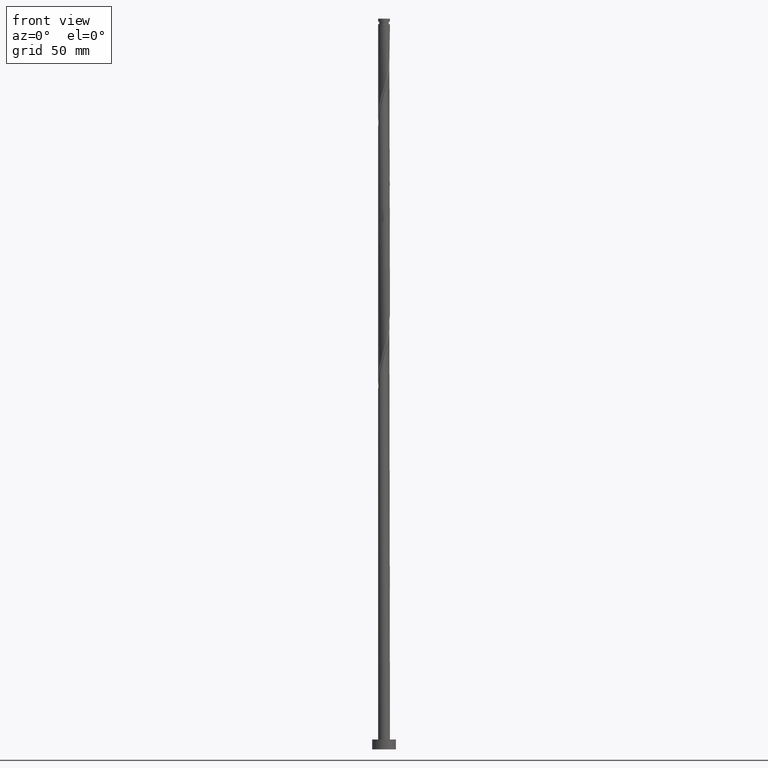
[diagram: clean part render]
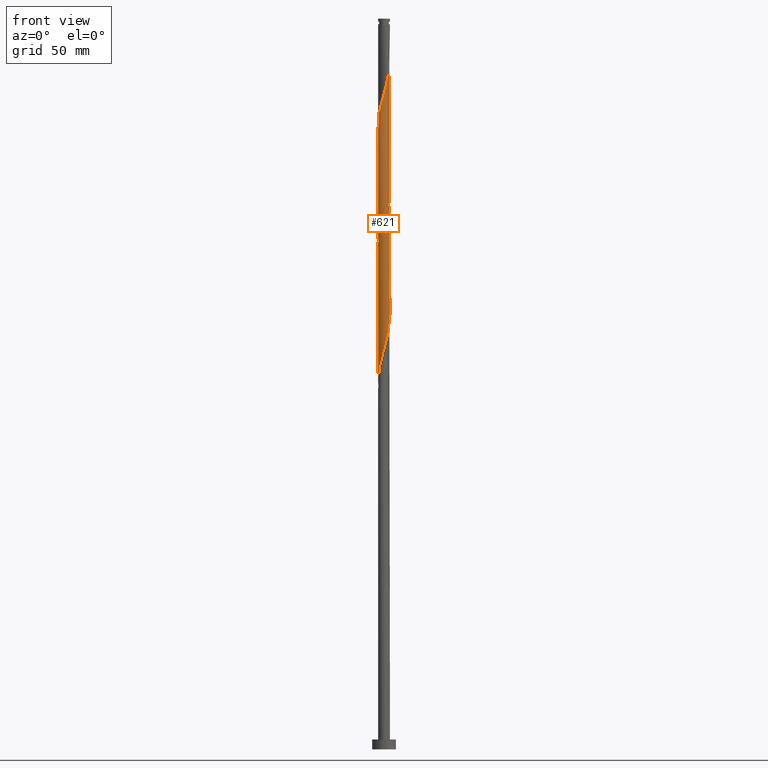
[diagram: same view with one face highlighted and labeled with its STEP entity id]
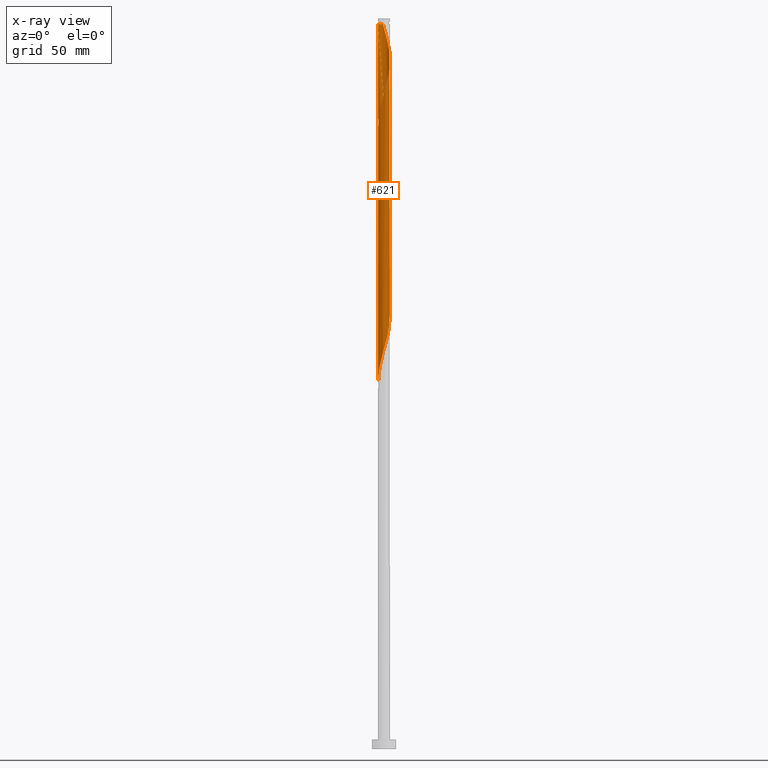
[diagram: x-ray of the same camera — body ghosted, the highlighted face saturated]
A machine part, front view. The second image highlights one B-rep face of the part: STEP entity #621.
The next image is the same camera in x-ray: the body ghosted, the highlighted face saturated — about 0% of this face is hidden behind the body in this view.
In plain terms, the highlighted cylindrical surface (bore or boss wall) has radius 3 mm, axis along (-0, -0, -1).
Its self-contained STEP definition (entity closure, byte-faithful):
#6 = CARTESIAN_POINT ( 'NONE',  ( 0.000000000000000000, 0.000000000000000000, 370.6999999999999886 ) ) ;
#8 = CARTESIAN_POINT ( 'NONE',  ( 3.000000000000000888, 2.406694882727060570E-15, 286.7088092630564233 ) ) ;
#9 = CARTESIAN_POINT ( 'NONE',  ( 0.9582386936374895914, -2.860279830445433991, 273.4722549084236789 ) ) ;
#18 = CARTESIAN_POINT ( 'NONE',  ( 1.741185482790980510, 2.443004935426440039, 296.8055882417570501 ) ) ;
#19 = CARTESIAN_POINT ( 'NONE',  ( 3.000000000000001776, -0.1435319978602364321, 286.2002607374924423 ) ) ;
#30 = CARTESIAN_POINT ( 'NONE',  ( 2.956194341916736690, -0.6002808636434370237, 284.5833660195348216 ) ) ;
#56 = EDGE_CURVE ( 'NONE', #1438, #1492, #1542, .T. ) ;
#79 = CARTESIAN_POINT ( 'NONE',  ( -0.02731362638454028907, -2.999875658392153088, 332.3611437973126499 ) ) ;
#99 = CARTESIAN_POINT ( 'NONE',  ( -0.6504259784947266088, 2.928642355512051765, 239.0278104639792787 ) ) ;
#102 = CARTESIAN_POINT ( 'NONE',  ( -2.766788993523056295, 1.201790650553046902, 249.0278104639792502 ) ) ;
#112 = CARTESIAN_POINT ( 'NONE',  ( 2.211065689225171660, 2.027606598413809635, 227.9166993528682212 ) ) ;
#114 = CARTESIAN_POINT ( 'NONE',  ( -1.785379858637177408, 2.410895841875523971, 243.4722549084237357 ) ) ;
#120 = CARTESIAN_POINT ( 'NONE',  ( 0.000000000000000000, 0.000000000000000000, 367.9166993528681928 ) ) ;
#122 = CARTESIAN_POINT ( 'NONE',  ( 1.741185482790980510, 2.443004935426440039, 230.1389215750903645 ) ) ;
#128 = CARTESIAN_POINT ( 'NONE',  ( -0.5969924622640903067, 2.940000000000866809, 367.9166993528684202 ) ) ;
#133 = CARTESIAN_POINT ( 'NONE',  ( 2.861491667719896714, -0.9010357570982435726, 216.8055882417571070 ) ) ;
#147 = CARTESIAN_POINT ( 'NONE',  ( -2.424175730171093335, -1.795214230025622415, 260.1389215750903645 ) ) ;
#179 = CARTESIAN_POINT ( 'NONE',  ( -2.861491667719896714, 0.9010357570982420183, 316.8055882417571070 ) ) ;
#180 = CARTESIAN_POINT ( 'NONE',  ( 1.785379858637176964, -2.410895841875524415, 210.1389215750904214 ) ) ;
#207 = CARTESIAN_POINT ( 'NONE',  ( -2.611625341554443036, -1.476283534877588677, 321.2500326862015072 ) ) ;
#211 =( BOUNDED_CURVE ( )  B_SPLINE_CURVE ( 2, ( #1046, #462, #889, #1349, #179, #598, #1620, #618, #735, #312, #1176, #752, #897, #1342, #1770, #1331, #1777, #1486, #908, #1219, #1498, #1475, #18, #1322, #1071, #1762, #303, #339, #760, #1197, #1034, #1505, #8 ),
 .UNSPECIFIED., .F., .T. ) 
 B_SPLINE_CURVE_WITH_KNOTS ( ( 3, 2, 2, 2, 2, 2, 2, 2, 2, 2, 2, 2, 2, 2, 2, 2, 3 ),
 ( 0.4295286012773113504, 0.4333333333333333481, 0.4416666666666666519, 0.4500000000000000111, 0.4583333333333333148, 0.4666666666666666741, 0.4749999999999999778, 0.4833333333333333370, 0.4916666666666666408, 0.5000000000000000000, 0.5083333333333333037, 0.5166666666666667185, 0.5250000000000000222, 0.5333333333333333259, 0.5416666666666666297, 0.5500000000000000444, 0.5545286012773110729 ),
 .UNSPECIFIED. ) 
 CURVE ( )  GEOMETRIC_REPRESENTATION_ITEM ( )  RATIONAL_B_SPLINE_CURVE ( ( 0.9066196499552411359, 0.9068171577856538601, 0.9090909090909528034, 0.9041108139712010772, 0.9090909090909528034, 0.9041108139712010772, 0.9090909090909528034, 0.9041108139712010772, 0.9090909090909528034, 0.9041108139712010772, 0.9090909090909528034, 0.9041108139712010772, 0.9090909090909528034, 0.9041108139712010772, 0.9090909090909528034, 0.9041108139712010772, 0.9090909090909528034, 0.9041108139712010772, 0.9090909090909528034, 0.9041108139712010772, 0.9090909090909528034, 0.9041108139712010772, 0.9090909090909528034, 0.9041108139712010772, 0.9090909090909528034, 0.9041108139712010772, 0.9090909090909528034, 0.9041108139712010772, 0.9090909090909528034, 0.9041108139712010772, 0.9090909090909528034, 0.9063845652765001315, 0.9066196499552410248 ) ) 
 REPRESENTATION_ITEM ( '' )  );
#233 = CARTESIAN_POINT ( 'NONE',  ( -1.195207115623887262, -2.751632233922627346, 199.0278104639792787 ) ) ;
#244 = CARTESIAN_POINT ( 'NONE',  ( 0.02731362638453780495, -2.999875658392149091, 203.4722549084237073 ) ) ;
#247 = CARTESIAN_POINT ( 'NONE',  ( 1.245111594254573628, 2.729413328510883918, 361.2500326862015072 ) ) ;
#258 = CARTESIAN_POINT ( 'NONE',  ( 2.844610918258240417, -0.9529893618115782283, 345.6944771306459643 ) ) ;
#260 = CARTESIAN_POINT ( 'NONE',  ( -3.000000000000000888, -3.767000686007573134E-15, 186.7088092630563949 ) ) ;
#268 = CARTESIAN_POINT ( 'NONE',  ( 1.195207115623886374, -2.751632233922632231, 336.8055882417570501 ) ) ;
#275 = EDGE_CURVE ( 'NONE', #349, #745, #384, .T. ) ;
#276 = CARTESIAN_POINT ( 'NONE',  ( -0.5969924622640904177, 2.940000000000866365, 367.9166993528684202 ) ) ;
#279 = CARTESIAN_POINT ( 'NONE',  ( -1.741185482790978734, -2.443004935426440927, 263.4722549084237357 ) ) ;
#287 = CARTESIAN_POINT ( 'NONE',  ( -3.000000000000004885, -1.076285910287870657E-15, 315.7912561093466479 ) ) ;
#288 = CARTESIAN_POINT ( 'NONE',  ( 0.3426132633519626824, -2.997004880578669983, 271.2500326862013935 ) ) ;
#293 = CARTESIAN_POINT ( 'NONE',  ( 2.247618455994261133, -1.987010638188425382, 212.3611437973126215 ) ) ;
#303 = CARTESIAN_POINT ( 'NONE',  ( 2.584311715169900658, 1.523592123514560637, 292.3611437973125362 ) ) ;
#312 = CARTESIAN_POINT ( 'NONE',  ( -2.038775222402704035, 2.223244857174722089, 311.2500326862015640 ) ) ;
#313 = CARTESIAN_POINT ( 'NONE',  ( 3.000000000000000888, 2.406694882727060570E-15, 286.7088092630564233 ) ) ;
#323 = CARTESIAN_POINT ( 'NONE',  ( 1.785379858637176964, -2.410895841875524415, 276.8055882417570501 ) ) ;
#339 = CARTESIAN_POINT ( 'NONE',  ( 2.744447700168705762, 1.251970017003499969, 291.2500326862015072 ) ) ;
#340 = EDGE_CURVE ( 'NONE', #745, #1153, #1651, .T. ) ;
#349 = VERTEX_POINT ( 'NONE', #634 ) ;
#376 = CARTESIAN_POINT ( 'NONE',  ( -2.956194341916736690, 0.6002808636434365797, 251.2500326862014504 ) ) ;
#384 = LINE ( 'NONE', #1148, #1372 ) ;
#389 = CARTESIAN_POINT ( 'NONE',  ( 2.980586974261067557, -0.3407363920471049856, 347.9166993528681928 ) ) ;
#397 = CARTESIAN_POINT ( 'NONE',  ( 1.741185482790979622, -2.443004935426445812, 339.0278104639792218 ) ) ;
#403 = CARTESIAN_POINT ( 'NONE',  ( 0.3426132633519626824, -2.997004880578669983, 204.5833660195348216 ) ) ;
#423 = CARTESIAN_POINT ( 'NONE',  ( -3.000000000000000444, 0.000000000000000000, 370.6999999999999886 ) ) ;
#424 = CARTESIAN_POINT ( 'NONE',  ( -1.484415317302709481, -2.626010904050883887, 264.5833660195348216 ) ) ;
#443 = CARTESIAN_POINT ( 'NONE',  ( -2.980586974261064004, -0.3407363920471033203, 254.5833660195348500 ) ) ;
#444 = CARTESIAN_POINT ( 'NONE',  ( -2.424175730171093335, -1.795214230025622415, 193.4722549084237357 ) ) ;
#462 = CARTESIAN_POINT ( 'NONE',  ( -3.000000000000000888, 0.1435319978602463964, 319.5335940708255862 ) ) ;
#463 = CARTESIAN_POINT ( 'NONE',  ( 2.611625341554438595, -1.476283534877587122, 281.2500326862015072 ) ) ;
#467 = DIRECTION ( 'NONE',  ( -0.000000000000000000, -0.000000000000000000, -1.000000000000000000 ) ) ;
#471 = DIRECTION ( 'NONE',  ( -0.000000000000000000, -0.000000000000000000, -1.000000000000000000 ) ) ;
#508 = CARTESIAN_POINT ( 'NONE',  ( -0.3426132633519643478, -2.997004880578673980, 331.2500326862015072 ) ) ;
#524 = CARTESIAN_POINT ( 'NONE',  ( 1.484415317302710813, -2.626010904050889216, 337.9166993528681928 ) ) ;
#536 = CARTESIAN_POINT ( 'NONE',  ( 0.02731362638454072275, 2.999875658392153088, 365.6944771306459074 ) ) ;
#550 = CARTESIAN_POINT ( 'NONE',  ( 2.944774136347767968, 0.6540087066196476062, 222.3611437973126215 ) ) ;
#557 = ORIENTED_EDGE ( 'NONE', *, *, #819, .T. ) ;
#562 = CARTESIAN_POINT ( 'NONE',  ( -0.5969924622639748435, -2.939999999999999059, 201.2500326862015072 ) ) ;
#570 = CARTESIAN_POINT ( 'NONE',  ( 2.247618455994261133, -1.987010638188425382, 279.0278104639792787 ) ) ;
#574 = CARTESIAN_POINT ( 'NONE',  ( 0.5969924622639753986, 2.939999999999999059, 234.5833660195348500 ) ) ;
#575 = CARTESIAN_POINT ( 'NONE',  ( -1.245111594254570742, 2.729413328510879921, 241.2500326862014219 ) ) ;
#579 = DIRECTION ( 'NONE',  ( -1.000000000000000000, 0.000000000000000000, 0.000000000000000000 ) ) ;
#580 = CARTESIAN_POINT ( 'NONE',  ( 1.245111594254570520, -2.729413328510879921, 274.5833660195348216 ) ) ;
#598 = CARTESIAN_POINT ( 'NONE',  ( -2.766788993523056295, 1.201790650553046902, 315.6944771306459074 ) ) ;
#599 = CARTESIAN_POINT ( 'NONE',  ( 2.038775222402703591, -2.223244857174722977, 277.9166993528682497 ) ) ;
#604 = FACE_OUTER_BOUND ( 'NONE', #753, .T. ) ;
#608 = CARTESIAN_POINT ( 'NONE',  ( 2.766788993523056295, -1.201790650553047790, 282.3611437973127067 ) ) ;
#612 = CARTESIAN_POINT ( 'NONE',  ( -3.000000000000000444, -0.1709212123392990779, 187.3144005724409453 ) ) ;
#618 = CARTESIAN_POINT ( 'NONE',  ( -2.456461689585820007, 1.750776419202127343, 313.4722549084235652 ) ) ;
#621 = ADVANCED_FACE ( 'NONE', ( #604 ), #1208, .T. ) ;
#630 = CARTESIAN_POINT ( 'NONE',  ( 1.531984494871650115, -2.598546826576326740, 209.0278104639792218 ) ) ;
#634 = CARTESIAN_POINT ( 'NONE',  ( 3.000000000000000444, 3.673940397442059868E-16, 367.9166993528684202 ) ) ;
#646 = ORIENTED_EDGE ( 'NONE', *, *, #56, .F. ) ;
#650 = CARTESIAN_POINT ( 'NONE',  ( -1.531984494871654556, -2.598546826576329849, 326.8055882417571070 ) ) ;
#662 = CARTESIAN_POINT ( 'NONE',  ( -0.6504259784947286072, -2.928642355512055762, 330.1389215750903645 ) ) ;
#669 = CARTESIAN_POINT ( 'NONE',  ( 0.2879860105828849770, -3.002746436205633085, 333.4722549084237926 ) ) ;
#683 = CARTESIAN_POINT ( 'NONE',  ( -1.484415317302709481, -2.626010904050883887, 197.9166993528682212 ) ) ;
#696 = CARTESIAN_POINT ( 'NONE',  ( 0.9582386936374895914, -2.860279830445433991, 206.8055882417570217 ) ) ;
#697 = CARTESIAN_POINT ( 'NONE',  ( 1.531984494871656111, 2.598546826576328961, 360.1389215750905350 ) ) ;
#708 = CARTESIAN_POINT ( 'NONE',  ( 2.424175730171094667, 1.795214230025619750, 226.8055882417570501 ) ) ;
#710 = ORIENTED_EDGE ( 'NONE', *, *, #340, .F. ) ;
#715 = DIRECTION ( 'NONE',  ( -0.000000000000000000, -0.000000000000000000, -1.000000000000000000 ) ) ;
#716 = CARTESIAN_POINT ( 'NONE',  ( -0.2879860105828869199, -3.002746436205628200, 269.0278104639792218 ) ) ;
#735 = CARTESIAN_POINT ( 'NONE',  ( -2.247618455994261133, 1.987010638188424938, 312.3611437973125362 ) ) ;
#736 = CARTESIAN_POINT ( 'NONE',  ( -2.744447700168706206, -1.251970017003500413, 257.9166993528681360 ) ) ;
#745 = VERTEX_POINT ( 'NONE', #902 ) ;
#752 = CARTESIAN_POINT ( 'NONE',  ( -1.531984494871651448, 2.598546826576326296, 309.0278104639792787 ) ) ;
#753 = EDGE_LOOP ( 'NONE', ( #1048, #1727, #646, #557, #710, #1024, #1228, #789 ) ) ;
#760 = CARTESIAN_POINT ( 'NONE',  ( 2.844610918258237753, 0.9529893618115730103, 290.1389215750904782 ) ) ;
#767 = CARTESIAN_POINT ( 'NONE',  ( -2.744447700168706206, -1.251970017003500413, 191.2500326862014504 ) ) ;
#782 = CARTESIAN_POINT ( 'NONE',  ( -3.000000000000006217, -0.1435319978602337954, 316.2998046349106858 ) ) ;
#789 = ORIENTED_EDGE ( 'NONE', *, *, #1578, .F. ) ;
#801 = CARTESIAN_POINT ( 'NONE',  ( -2.766788993523062068, -1.201790650553047346, 320.1389215750903645 ) ) ;
#816 = CARTESIAN_POINT ( 'NONE',  ( -2.038775222402708032, -2.223244857174724753, 324.5833660195348216 ) ) ;
#819 = EDGE_CURVE ( 'NONE', #1438, #1153, #1066, .T. ) ;
#824 = CARTESIAN_POINT ( 'NONE',  ( 2.744447700168710647, -1.251970017003503521, 344.5833660195348784 ) ) ;
#827 = DIRECTION ( 'NONE',  ( -0.000000000000000000, -0.000000000000000000, -1.000000000000000000 ) ) ;
#833 = CARTESIAN_POINT ( 'NONE',  ( 0.9582386936374934772, 2.860279830445438431, 362.3611437973127067 ) ) ;
#841 = CARTESIAN_POINT ( 'NONE',  ( -2.247618455994261133, 1.987010638188424938, 245.6944771306459359 ) ) ;
#845 = CARTESIAN_POINT ( 'NONE',  ( 3.016399812174365369, -0.02746407747455998846, 349.0278104639792787 ) ) ;
#853 = CARTESIAN_POINT ( 'NONE',  ( 0.2879860105828857542, 3.002746436205628200, 235.6944771306459359 ) ) ;
#864 = CARTESIAN_POINT ( 'NONE',  ( -2.456461689585820007, 1.750776419202127343, 246.8055882417570501 ) ) ;
#869 = CARTESIAN_POINT ( 'NONE',  ( 0.02731362638453780495, -2.999875658392149091, 270.1389215750904214 ) ) ;
#870 = AXIS2_PLACEMENT_3D ( 'NONE', #6, #471, #1174 ) ;
#882 = LINE ( 'NONE', #423, #903 ) ;
#883 = CARTESIAN_POINT ( 'NONE',  ( -2.211065689225171216, -2.027606598413809635, 261.2500326862015072 ) ) ;
#889 = CARTESIAN_POINT ( 'NONE',  ( -2.986297077045549031, 0.2864083930844396053, 319.0278104639793355 ) ) ;
#890 = CARTESIAN_POINT ( 'NONE',  ( -3.016399812174360040, -0.02746407747455760148, 253.4722549084237357 ) ) ;
#897 = CARTESIAN_POINT ( 'NONE',  ( -1.245111594254570742, 2.729413328510879921, 307.9166993528681928 ) ) ;
#898 = CARTESIAN_POINT ( 'NONE',  ( -2.584311715169900658, -1.523592123514560637, 259.0278104639792787 ) ) ;
#902 = CARTESIAN_POINT ( 'NONE',  ( 3.000000000000000888, 2.406694882727060570E-15, 286.7088092630564233 ) ) ;
#903 = VECTOR ( 'NONE', #1147, 1000.000000000000000 ) ;
#904 = CARTESIAN_POINT ( 'NONE',  ( -2.944774136347767080, -0.6540087066196489385, 189.0278104639793071 ) ) ;
#908 = CARTESIAN_POINT ( 'NONE',  ( 0.5969924622639753986, 2.939999999999999059, 301.2500326862016209 ) ) ;
#909 = CARTESIAN_POINT ( 'NONE',  ( 1.531984494871650115, -2.598546826576326740, 275.6944771306459074 ) ) ;
#912 = VERTEX_POINT ( 'NONE', #1480 ) ;
#927 = CARTESIAN_POINT ( 'NONE',  ( -2.211065689225171216, -2.027606598413809635, 194.5833660195348216 ) ) ;
#937 = CARTESIAN_POINT ( 'NONE',  ( -2.456461689585824892, -1.750776419202129786, 322.3611437973127067 ) ) ;
#972 = CARTESIAN_POINT ( 'NONE',  ( -2.861491667719896714, 0.9010357570982420183, 250.1389215750903645 ) ) ;
#985 = CARTESIAN_POINT ( 'NONE',  ( 1.195207115623887706, 2.751632233922627346, 232.3611437973125646 ) ) ;
#987 = CARTESIAN_POINT ( 'NONE',  ( 2.861491667719901599, 0.9010357570982411302, 352.3611437973125362 ) ) ;
#997 = CARTESIAN_POINT ( 'NONE',  ( 2.456461689585825336, 1.750776419202128453, 355.6944771306459074 ) ) ;
#1006 = CARTESIAN_POINT ( 'NONE',  ( 2.611625341554443036, 1.476283534877588233, 354.5833660195348784 ) ) ;
#1011 = CARTESIAN_POINT ( 'NONE',  ( 1.484415317302709703, 2.626010904050883887, 231.2500326862014504 ) ) ;
#1024 = ORIENTED_EDGE ( 'NONE', *, *, #275, .F. ) ;
#1034 = CARTESIAN_POINT ( 'NONE',  ( 2.980586974261064004, 0.3407363920471030427, 287.9166993528681360 ) ) ;
#1035 = CARTESIAN_POINT ( 'NONE',  ( 2.986297077045549031, -0.2864083930844406600, 285.6944771306460211 ) ) ;
#1046 = CARTESIAN_POINT ( 'NONE',  ( -3.000000000000000888, -1.823706681321126670E-15, 320.0421425963896809 ) ) ;
#1048 = ORIENTED_EDGE ( 'NONE', *, *, #1444, .F. ) ;
#1057 = CARTESIAN_POINT ( 'NONE',  ( -1.997955648279248209, -2.259998966801995746, 195.6944771306459359 ) ) ;
#1066 = LINE ( 'NONE', #1371, #1241 ) ;
#1071 = CARTESIAN_POINT ( 'NONE',  ( 2.211065689225171660, 2.027606598413809635, 294.5833660195347647 ) ) ;
#1072 = CARTESIAN_POINT ( 'NONE',  ( 1.245111594254570520, -2.729413328510879921, 207.9166993528681644 ) ) ;
#1078 = CARTESIAN_POINT ( 'NONE',  ( -2.999999999999968026, 0.000000000000000000, 367.9166993528681928 ) ) ;
#1081 = CARTESIAN_POINT ( 'NONE',  ( -2.956194341916741575, -0.6002808636434369127, 317.9166993528681928 ) ) ;
#1121 = CARTESIAN_POINT ( 'NONE',  ( -0.9059989139450640439, -2.877253563794370361, 200.1389215750903929 ) ) ;
#1127 = CARTESIAN_POINT ( 'NONE',  ( -0.2879860105828917494, 3.002746436205633085, 366.8055882417571638 ) ) ;
#1142 = CARTESIAN_POINT ( 'NONE',  ( 3.016399812174360040, 0.02746407747455568635, 220.1389215750903361 ) ) ;
#1145 = CARTESIAN_POINT ( 'NONE',  ( 0.5969924622639747325, -2.940000000000002611, 334.5833660195348784 ) ) ;
#1147 = DIRECTION ( 'NONE',  ( -0.000000000000000000, -0.000000000000000000, -1.000000000000000000 ) ) ;
#1148 = CARTESIAN_POINT ( 'NONE',  ( 3.000000000000000444, 3.673940397442059868E-16, 370.6999999999999886 ) ) ;
#1152 = CARTESIAN_POINT ( 'NONE',  ( 2.744447700168705762, 1.251970017003499969, 224.5833660195347647 ) ) ;
#1153 = VERTEX_POINT ( 'NONE', #260 ) ;
#1160 = CARTESIAN_POINT ( 'NONE',  ( -1.195207115623887262, -2.751632233922627346, 265.6944771306459643 ) ) ;
#1170 = CARTESIAN_POINT ( 'NONE',  ( -1.997955648279248209, -2.259998966801995746, 262.3611437973126499 ) ) ;
#1174 = DIRECTION ( 'NONE',  ( -1.000000000000000000, 0.000000000000000000, 0.000000000000000000 ) ) ;
#1176 = CARTESIAN_POINT ( 'NONE',  ( -1.785379858637177408, 2.410895841875523971, 310.1389215750904214 ) ) ;
#1177 = CARTESIAN_POINT ( 'NONE',  ( -2.944774136347767080, -0.6540087066196489385, 255.6944771306459643 ) ) ;
#1197 = CARTESIAN_POINT ( 'NONE',  ( 2.944774136347767968, 0.6540087066196476062, 289.0278104639792787 ) ) ;
#1202 = CARTESIAN_POINT ( 'NONE',  ( 2.456461689585819119, -1.750776419202129341, 213.4722549084237357 ) ) ;
#1208 = CYLINDRICAL_SURFACE ( 'NONE', #870, 3.000000000000000444 ) ;
#1216 = CIRCLE ( 'NONE', #1362, 2.999999999999968026 ) ;
#1219 = CARTESIAN_POINT ( 'NONE',  ( 0.9059989139450657092, 2.877253563794370361, 300.1389215750903077 ) ) ;
#1228 = ORIENTED_EDGE ( 'NONE', *, *, #275, .T. ) ;
#1241 = VECTOR ( 'NONE', #467, 1000.000000000000000 ) ;
#1263 = CARTESIAN_POINT ( 'NONE',  ( 2.944774136347771076, -0.6540087066196533794, 346.8055882417570501 ) ) ;
#1272 = CARTESIAN_POINT ( 'NONE',  ( 2.247618455994267350, 1.987010638188425604, 356.8055882417569933 ) ) ;
#1284 = CARTESIAN_POINT ( 'NONE',  ( 2.844610918258237753, 0.9529893618115730103, 223.4722549084237642 ) ) ;
#1297 = CARTESIAN_POINT ( 'NONE',  ( 2.986297077045549031, -0.2864083930844406600, 219.0278104639793071 ) ) ;
#1298 = CARTESIAN_POINT ( 'NONE',  ( -0.2879860105828869199, -3.002746436205628200, 202.3611437973125646 ) ) ;
#1308 = CARTESIAN_POINT ( 'NONE',  ( -0.02731362638453854741, 2.999875658392149091, 236.8055882417570501 ) ) ;
#1322 = CARTESIAN_POINT ( 'NONE',  ( 1.997955648279248431, 2.259998966801995746, 295.6944771306460211 ) ) ;
#1323 = CARTESIAN_POINT ( 'NONE',  ( -2.844610918258236421, -0.9529893618115742315, 256.8055882417571070 ) ) ;
#1327 = EDGE_CURVE ( 'NONE', #1792, #1492, #1216, .T. ) ;
#1331 = CARTESIAN_POINT ( 'NONE',  ( -0.3426132633519631820, 2.997004880578669983, 304.5833660195348784 ) ) ;
#1333 = CARTESIAN_POINT ( 'NONE',  ( -2.584311715169900658, -1.523592123514560637, 192.3611437973126215 ) ) ;
#1342 = CARTESIAN_POINT ( 'NONE',  ( -0.9582386936374900355, 2.860279830445433547, 306.8055882417569364 ) ) ;
#1349 = CARTESIAN_POINT ( 'NONE',  ( -2.956194341916736690, 0.6002808636434365797, 317.9166993528681928 ) ) ;
#1352 = CARTESIAN_POINT ( 'NONE',  ( 2.611625341554438595, -1.476283534877587122, 214.5833660195349069 ) ) ;
#1362 = AXIS2_PLACEMENT_3D ( 'NONE', #120, #715, #579 ) ;
#1367 = CARTESIAN_POINT ( 'NONE',  ( -2.986297077045553472, -0.2864083930844384951, 316.8055882417570501 ) ) ;
#1371 = CARTESIAN_POINT ( 'NONE',  ( -3.000000000000000444, 0.000000000000000000, 370.6999999999999886 ) ) ;
#1372 = VECTOR ( 'NONE', #827, 1000.000000000000000 ) ;
#1378 = CARTESIAN_POINT ( 'NONE',  ( -2.247618455994266018, -1.987010638188426492, 323.4722549084236789 ) ) ;
#1387 = CARTESIAN_POINT ( 'NONE',  ( -0.9582386936374930331, -2.860279830445438431, 329.0278104639793924 ) ) ;
#1391 = CARTESIAN_POINT ( 'NONE',  ( -3.000000000000000888, -3.767000686007573134E-15, 186.7088092630563949 ) ) ;
#1398 = CARTESIAN_POINT ( 'NONE',  ( -1.785379858637181405, -2.410895841875526191, 325.6944771306460211 ) ) ;
#1408 = CARTESIAN_POINT ( 'NONE',  ( 2.986297077045553472, 0.2864083930844368298, 350.1389215750904214 ) ) ;
#1426 = CARTESIAN_POINT ( 'NONE',  ( 2.766788993523062068, 1.201790650553045570, 353.4722549084238494 ) ) ;
#1430 = CARTESIAN_POINT ( 'NONE',  ( 0.9059989139450657092, 2.877253563794370361, 233.4722549084236789 ) ) ;
#1438 = VERTEX_POINT ( 'NONE', #287 ) ;
#1444 = EDGE_CURVE ( 'NONE', #1792, #912, #882, .T. ) ;
#1451 = CARTESIAN_POINT ( 'NONE',  ( 2.584311715169900658, 1.523592123514560637, 225.6944771306459359 ) ) ;
#1457 = CARTESIAN_POINT ( 'NONE',  ( 2.456461689585819119, -1.750776419202129341, 280.1389215750903645 ) ) ;
#1465 = CARTESIAN_POINT ( 'NONE',  ( 0.6504259784947254985, -2.928642355512052209, 272.3611437973125931 ) ) ;
#1475 = CARTESIAN_POINT ( 'NONE',  ( 1.484415317302709703, 2.626010904050883887, 297.9166993528681360 ) ) ;
#1476 = CARTESIAN_POINT ( 'NONE',  ( -2.986297077045549031, 0.2864083930844396053, 252.3611437973126783 ) ) ;
#1480 = CARTESIAN_POINT ( 'NONE',  ( -3.000000000000000888, -1.823706681321126670E-15, 320.0421425963896240 ) ) ;
#1486 = CARTESIAN_POINT ( 'NONE',  ( 0.2879860105828857542, 3.002746436205628200, 302.3611437973124794 ) ) ;
#1492 = VERTEX_POINT ( 'NONE', #128 ) ;
#1494 = CARTESIAN_POINT ( 'NONE',  ( -2.980586974261064004, -0.3407363920471033203, 187.9166993528681360 ) ) ;
#1498 = CARTESIAN_POINT ( 'NONE',  ( 1.195207115623887706, 2.751632233922627346, 299.0278104639793355 ) ) ;
#1505 = CARTESIAN_POINT ( 'NONE',  ( 2.999999999999999112, 0.1709212123393103744, 287.3144005724409453 ) ) ;
#1537 = CARTESIAN_POINT ( 'NONE',  ( -1.245111594254572962, -2.729413328510883918, 327.9166993528680791 ) ) ;
#1542 =( BOUNDED_CURVE ( )  B_SPLINE_CURVE ( 2, ( #1679, #782, #1367, #1081, #1659, #801, #207, #937, #1378, #816, #1398, #650, #1537, #1387, #662, #508, #79, #669, #1145, #1736, #268, #524, #397, #1707, #1563, #1723, #1698, #824, #258, #1263, #389, #845, #1408, #1885, #987, #1426, #1006, #997, #1272, #1573, #1877, #697, #247, #833, #1553, #1591, #536, #1127, #276 ),
 .UNSPECIFIED., .F., .T. ) 
 B_SPLINE_CURVE_WITH_KNOTS ( ( 3, 2, 2, 2, 2, 2, 2, 2, 2, 2, 2, 2, 2, 2, 2, 2, 2, 2, 2, 2, 2, 2, 2, 2, 3 ),
 ( 0.5545286012773110729, 0.5583333333333333481, 0.5666666666666666519, 0.5749999999999999556, 0.5833333333333332593, 0.5916666666666666741, 0.6000000000000000888, 0.6083333333333335036, 0.6166666666666668073, 0.6250000000000001110, 0.6333333333333334147, 0.6416666666666667185, 0.6500000000000001332, 0.6583333333333334370, 0.6666666666666668517, 0.6750000000000001554, 0.6833333333333334592, 0.6916666666666668739, 0.7000000000000001776, 0.7083333333333334814, 0.7166666666666668961, 0.7250000000000001998, 0.7333333333333336146, 0.7416666666666669183, 0.7500000000000002220 ),
 .UNSPECIFIED. ) 
 CURVE ( )  GEOMETRIC_REPRESENTATION_ITEM ( )  RATIONAL_B_SPLINE_CURVE ( ( 0.9066196499552472421, 0.9068171577856597443, 0.9090909090909590207, 0.9041108139712069613, 0.9090909090909590207, 0.9041108139712069613, 0.9090909090909590207, 0.9041108139712069613, 0.9090909090909590207, 0.9041108139712069613, 0.9090909090909590207, 0.9041108139712069613, 0.9090909090909590207, 0.9041108139712069613, 0.9090909090909590207, 0.9041108139712069613, 0.9090909090909590207, 0.9041108139712069613, 0.9090909090909590207, 0.9041108139712069613, 0.9090909090909590207, 0.9041108139712069613, 0.9090909090909590207, 0.9041108139712069613, 0.9090909090909590207, 0.9041108139712069613, 0.9090909090909590207, 0.9041108139712069613, 0.9090909090909590207, 0.9041108139712069613, 0.9090909090909590207, 0.9041108139712069613, 0.9090909090909590207, 0.9041108139712069613, 0.9090909090909590207, 0.9041108139712069613, 0.9090909090909590207, 0.9041108139712069613, 0.9090909090909590207, 0.9041108139712069613, 0.9090909090909590207, 0.9041108139712069613, 0.9090909090909590207, 0.9041108139712069613, 0.9090909090909590207, 0.9041108139712069613, 0.9090909090909590207, 0.9041108139712068503, 0.9090909090909591317 ) ) 
 REPRESENTATION_ITEM ( '' )  );
#1553 = CARTESIAN_POINT ( 'NONE',  ( 0.6504259784947306056, 2.928642355512054873, 363.4722549084237357 ) ) ;
#1563 = CARTESIAN_POINT ( 'NONE',  ( 2.211065689225172548, -2.027606598413813632, 341.2500326862014504 ) ) ;
#1573 = CARTESIAN_POINT ( 'NONE',  ( 2.038775222402708476, 2.223244857174724309, 357.9166993528681928 ) ) ;
#1578 = EDGE_CURVE ( 'NONE', #912, #745, #211, .T. ) ;
#1591 = CARTESIAN_POINT ( 'NONE',  ( 0.3426132633519648474, 2.997004880578673980, 364.5833660195349353 ) ) ;
#1596 = CARTESIAN_POINT ( 'NONE',  ( 1.997955648279248431, 2.259998966801995746, 229.0278104639792502 ) ) ;
#1604 = CARTESIAN_POINT ( 'NONE',  ( -0.9059989139450640439, -2.877253563794370361, 266.8055882417570501 ) ) ;
#1620 = CARTESIAN_POINT ( 'NONE',  ( -2.611625341554438595, 1.476283534877586456, 314.5833660195348216 ) ) ;
#1626 = CARTESIAN_POINT ( 'NONE',  ( -2.844610918258236421, -0.9529893618115742315, 190.1389215750903929 ) ) ;
#1651 =( BOUNDED_CURVE ( )  B_SPLINE_CURVE ( 2, ( #313, #19, #1035, #30, #1763, #608, #463, #1457, #570, #599, #323, #909, #580, #9, #1465, #288, #869, #716, #1752, #1604, #1160, #424, #279, #1170, #883, #147, #898, #736, #1323, #1177, #443, #890, #1476, #376, #972, #102, #1863, #864, #841, #1891, #114, #1874, #575, #1872, #99, #1711, #1308, #853, #574, #1430, #985, #1011, #122, #1596, #112, #708, #1451, #1152, #1284, #550, #1882, #1142, #1297, #1718, #133, #1889, #1352, #1202, #293, #1811, #180, #630, #1072, #696, #1719, #403, #244, #1298, #562, #1121, #233, #683, #1703, #1057, #927, #444, #1333, #767, #1626, #904, #1494, #612, #1391 ),
 .UNSPECIFIED., .F., .T. ) 
 B_SPLINE_CURVE_WITH_KNOTS ( ( 3, 2, 2, 2, 2, 2, 2, 2, 2, 2, 2, 2, 2, 2, 2, 2, 2, 2, 2, 2, 2, 2, 2, 2, 2, 2, 2, 2, 2, 2, 2, 2, 2, 2, 2, 2, 2, 2, 2, 2, 2, 2, 2, 2, 2, 2, 3 ),
 ( 0.5545286012773110729, 0.5583333333333333481, 0.5666666666666666519, 0.5749999999999999556, 0.5833333333333333703, 0.5916666666666666741, 0.5999999999999999778, 0.6083333333333332815, 0.6166666666666666963, 0.6250000000000000000, 0.6333333333333333037, 0.6416666666666667185, 0.6500000000000000222, 0.6583333333333333259, 0.6666666666666666297, 0.6750000000000000444, 0.6833333333333333481, 0.6916666666666666519, 0.6999999999999999556, 0.7083333333333333703, 0.7166666666666666741, 0.7249999999999999778, 0.7333333333333332815, 0.7416666666666666963, 0.7500000000000000000, 0.7583333333333333037, 0.7666666666666667185, 0.7750000000000000222, 0.7833333333333333259, 0.7916666666666666297, 0.8000000000000000444, 0.8083333333333333481, 0.8166666666666666519, 0.8249999999999999556, 0.8333333333333333703, 0.8416666666666666741, 0.8499999999999999778, 0.8583333333333332815, 0.8666666666666666963, 0.8750000000000000000, 0.8833333333333333037, 0.8916666666666667185, 0.9000000000000000222, 0.9083333333333333259, 0.9166666666666666297, 0.9250000000000000444, 0.9295286012773114059 ),
 .UNSPECIFIED. ) 
 CURVE ( )  GEOMETRIC_REPRESENTATION_ITEM ( )  RATIONAL_B_SPLINE_CURVE ( ( 0.9066196499552410248, 0.9068171577856536381, 0.9090909090909528034, 0.9041108139712010772, 0.9090909090909528034, 0.9041108139712010772, 0.9090909090909528034, 0.9041108139712010772, 0.9090909090909528034, 0.9041108139712010772, 0.9090909090909528034, 0.9041108139712010772, 0.9090909090909528034, 0.9041108139712010772, 0.9090909090909528034, 0.9041108139712010772, 0.9090909090909528034, 0.9041108139712010772, 0.9090909090909528034, 0.9041108139712010772, 0.9090909090909528034, 0.9041108139712010772, 0.9090909090909528034, 0.9041108139712010772, 0.9090909090909528034, 0.9041108139712010772, 0.9090909090909528034, 0.9041108139712010772, 0.9090909090909528034, 0.9041108139712010772, 0.9090909090909528034, 0.9041108139712010772, 0.9090909090909528034, 0.9041108139712010772, 0.9090909090909528034, 0.9041108139712010772, 0.9090909090909528034, 0.9041108139712010772, 0.9090909090909528034, 0.9041108139712010772, 0.9090909090909528034, 0.9041108139712010772, 0.9090909090909528034, 0.9041108139712010772, 0.9090909090909528034, 0.9041108139712010772, 0.9090909090909528034, 0.9041108139712010772, 0.9090909090909528034, 0.9041108139712010772, 0.9090909090909528034, 0.9041108139712010772, 0.9090909090909528034, 0.9041108139712010772, 0.9090909090909528034, 0.9041108139712010772, 0.9090909090909528034, 0.9041108139712010772, 0.9090909090909528034, 0.9041108139712010772, 0.9090909090909528034, 0.9041108139712010772, 0.9090909090909528034, 0.9041108139712010772, 0.9090909090909528034, 0.9041108139712010772, 0.9090909090909528034, 0.9041108139712010772, 0.9090909090909528034, 0.9041108139712010772, 0.9090909090909528034, 0.9041108139712010772, 0.9090909090909528034, 0.9041108139712010772, 0.9090909090909528034, 0.9041108139712010772, 0.9090909090909528034, 0.9041108139712010772, 0.9090909090909528034, 0.9041108139712010772, 0.9090909090909528034, 0.9041108139712010772, 0.9090909090909528034, 0.9041108139712010772, 0.9090909090909528034, 0.9041108139712010772, 0.9090909090909528034, 0.9041108139712010772, 0.9090909090909528034, 0.9041108139712010772, 0.9090909090909528034, 0.9063845652765000205, 0.9066196499552411359 ) ) 
 REPRESENTATION_ITEM ( '' )  );
#1659 = CARTESIAN_POINT ( 'NONE',  ( -2.861491667719901599, -0.9010357570982420183, 319.0278104639792787 ) ) ;
#1679 = CARTESIAN_POINT ( 'NONE',  ( -3.000000000000004441, -1.076285910287870657E-15, 315.7912561093466479 ) ) ;
#1698 = CARTESIAN_POINT ( 'NONE',  ( 2.584311715169901991, -1.523592123514564856, 343.4722549084237357 ) ) ;
#1703 = CARTESIAN_POINT ( 'NONE',  ( -1.741185482790978734, -2.443004935426440927, 196.8055882417570501 ) ) ;
#1707 = CARTESIAN_POINT ( 'NONE',  ( 1.997955648279249319, -2.259998966802001963, 340.1389215750904782 ) ) ;
#1711 = CARTESIAN_POINT ( 'NONE',  ( -0.3426132633519631820, 2.997004880578669983, 237.9166993528681360 ) ) ;
#1718 = CARTESIAN_POINT ( 'NONE',  ( 2.956194341916736690, -0.6002808636434370237, 217.9166993528681928 ) ) ;
#1719 = CARTESIAN_POINT ( 'NONE',  ( 0.6504259784947254985, -2.928642355512052209, 205.6944771306459643 ) ) ;
#1723 = CARTESIAN_POINT ( 'NONE',  ( 2.424175730171096443, -1.795214230025627078, 342.3611437973128204 ) ) ;
#1727 = ORIENTED_EDGE ( 'NONE', *, *, #1327, .T. ) ;
#1736 = CARTESIAN_POINT ( 'NONE',  ( 0.9059989139450632667, -2.877253563794377467, 335.6944771306460211 ) ) ;
#1752 = CARTESIAN_POINT ( 'NONE',  ( -0.5969924622639748435, -2.939999999999999059, 267.9166993528681928 ) ) ;
#1762 = CARTESIAN_POINT ( 'NONE',  ( 2.424175730171094667, 1.795214230025619750, 293.4722549084237357 ) ) ;
#1763 = CARTESIAN_POINT ( 'NONE',  ( 2.861491667719896714, -0.9010357570982435726, 283.4722549084236789 ) ) ;
#1770 = CARTESIAN_POINT ( 'NONE',  ( -0.6504259784947266088, 2.928642355512051765, 305.6944771306459074 ) ) ;
#1777 = CARTESIAN_POINT ( 'NONE',  ( -0.02731362638453854741, 2.999875658392149091, 303.4722549084237357 ) ) ;
#1792 = VERTEX_POINT ( 'NONE', #1078 ) ;
#1811 = CARTESIAN_POINT ( 'NONE',  ( 2.038775222402703591, -2.223244857174722977, 211.2500326862014788 ) ) ;
#1863 = CARTESIAN_POINT ( 'NONE',  ( -2.611625341554438595, 1.476283534877586456, 247.9166993528681644 ) ) ;
#1872 = CARTESIAN_POINT ( 'NONE',  ( -0.9582386936374900355, 2.860279830445433547, 240.1389215750903645 ) ) ;
#1874 = CARTESIAN_POINT ( 'NONE',  ( -1.531984494871651448, 2.598546826576326296, 242.3611437973125646 ) ) ;
#1877 = CARTESIAN_POINT ( 'NONE',  ( 1.785379858637181849, 2.410895841875527079, 359.0278104639793355 ) ) ;
#1882 = CARTESIAN_POINT ( 'NONE',  ( 2.980586974261064004, 0.3407363920471030427, 221.2500326862015072 ) ) ;
#1885 = CARTESIAN_POINT ( 'NONE',  ( 2.956194341916741575, 0.6002808636434365797, 351.2500326862014504 ) ) ;
#1889 = CARTESIAN_POINT ( 'NONE',  ( 2.766788993523056295, -1.201790650553047790, 215.6944771306458790 ) ) ;
#1891 = CARTESIAN_POINT ( 'NONE',  ( -2.038775222402704035, 2.223244857174722089, 244.5833660195347363 ) ) ;